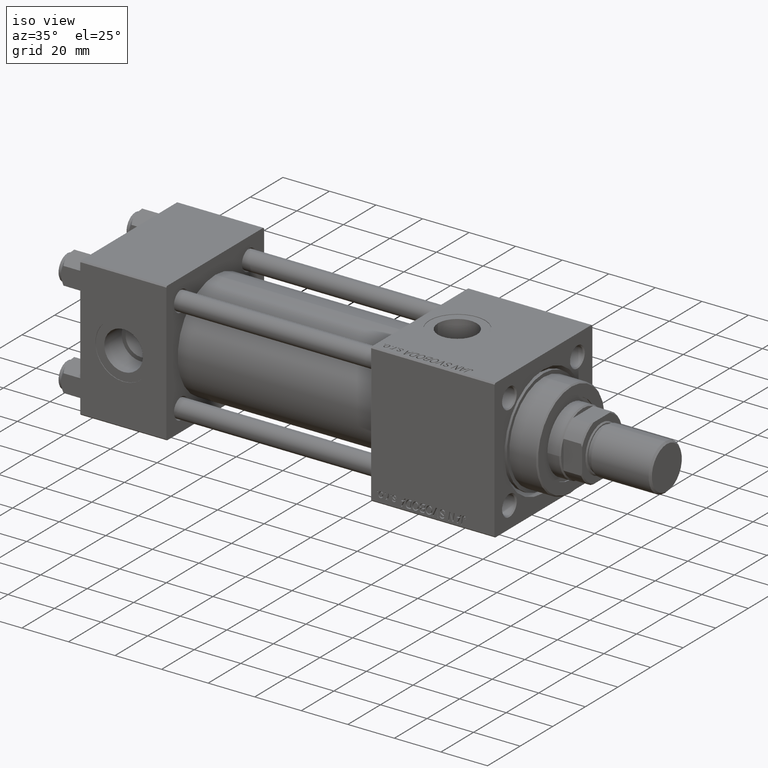
[diagram: clean part render]
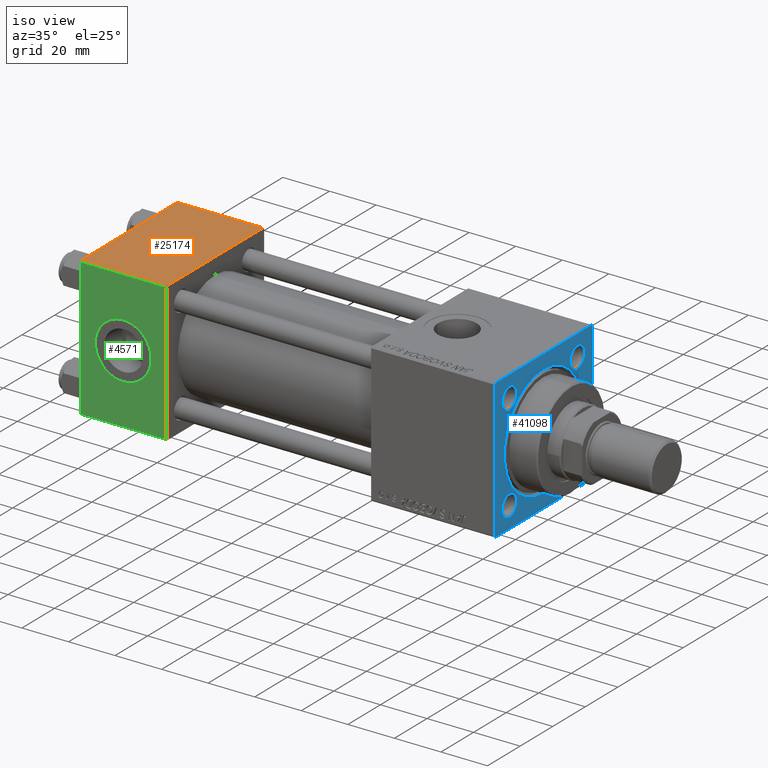
[diagram: same view with three faces highlighted in distinct colors, each labeled with its STEP entity id]
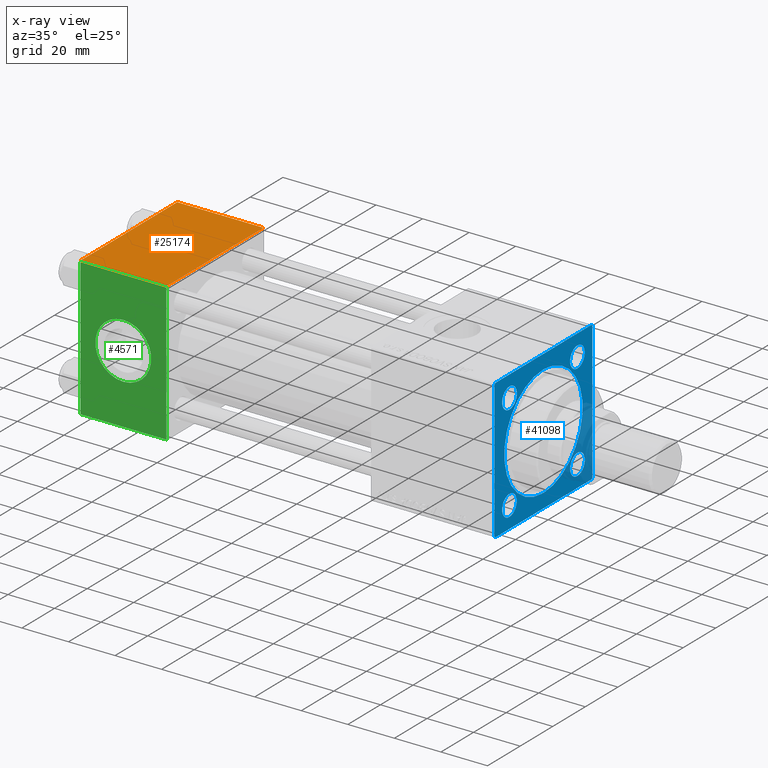
[diagram: x-ray of the same camera — body ghosted, the three highlighted faces saturated]
A machine part, iso view with three faces highlighted in distinct colors.
The next image is the same camera in x-ray (body ghosted, the three faces saturated) — at least one of them is partly hidden behind the body in this view.
Their STEP definitions:

[orange] entity #25174 — the highlighted planar face has unit normal (0, 0, -1).
#419 = CARTESIAN_POINT ( 'NONE',  ( 0.000000000000000000, 29.99999999999999289, 30.00000000000000000 ) ) ;
#2275 = ORIENTED_EDGE ( 'NONE', *, *, #38413, .T. ) ;
#3582 = CARTESIAN_POINT ( 'NONE',  ( 0.000000000000000000, -29.49999999999998579, 29.99999999999999289 ) ) ;
#4255 = VECTOR ( 'NONE', #31165, 1000.000000000000000 ) ;
#4434 = VERTEX_POINT ( 'NONE', #25150 ) ;
#4855 = CARTESIAN_POINT ( 'NONE',  ( 37.00000000000000000, -29.50000000000000000, 29.99999999999999289 ) ) ;
#5190 = DIRECTION ( 'NONE',  ( 0.000000000000000000, -1.000000000000000000, -1.156482317317871725E-16 ) ) ;
#6782 = VECTOR ( 'NONE', #5190, 1000.000000000000000 ) ;
#8196 = LINE ( 'NONE', #4855, #44171 ) ;
#8368 = ORIENTED_EDGE ( 'NONE', *, *, #26442, .F. ) ;
#9204 = DIRECTION ( 'NONE',  ( 1.000000000000000000, 0.000000000000000000, 0.000000000000000000 ) ) ;
#13129 = LINE ( 'NONE', #13383, #6782 ) ;
#13383 = CARTESIAN_POINT ( 'NONE',  ( 37.00000000000000000, 29.99999999999999289, 30.00000000000000000 ) ) ;
#15429 = DIRECTION ( 'NONE',  ( 0.000000000000000000, 1.156482317317871725E-16, -1.000000000000000000 ) ) ;
#15761 = VERTEX_POINT ( 'NONE', #47546 ) ;
#17382 = LINE ( 'NONE', #25059, #46408 ) ;
#17934 = VERTEX_POINT ( 'NONE', #45480 ) ;
#19281 = FACE_OUTER_BOUND ( 'NONE', #28199, .T. ) ;
#21654 = VERTEX_POINT ( 'NONE', #3582 ) ;
#23825 = EDGE_CURVE ( 'NONE', #4434, #21654, #35503, .T. ) ;
#25059 = CARTESIAN_POINT ( 'NONE',  ( 0.000000000000000000, 29.49999999999999289, 30.00000000000000000 ) ) ;
#25150 = CARTESIAN_POINT ( 'NONE',  ( 0.000000000000000000, 29.49999999999999289, 30.00000000000000000 ) ) ;
#25174 = ADVANCED_FACE ( 'NONE', ( #19281 ), #34883, .F. ) ;
#26442 = EDGE_CURVE ( 'NONE', #17934, #15761, #13129, .T. ) ;
#28199 = EDGE_LOOP ( 'NONE', ( #28802, #33187, #8368, #2275 ) ) ;
#28802 = ORIENTED_EDGE ( 'NONE', *, *, #23825, .T. ) ;
#31055 = DIRECTION ( 'NONE',  ( 0.000000000000000000, 1.000000000000000000, 1.156482317317871725E-16 ) ) ;
#31165 = DIRECTION ( 'NONE',  ( 0.000000000000000000, -1.000000000000000000, -1.156482317317871725E-16 ) ) ;
#33187 = ORIENTED_EDGE ( 'NONE', *, *, #48383, .T. ) ;
#34883 = PLANE ( 'NONE',  #49282 ) ;
#35503 = LINE ( 'NONE', #419, #4255 ) ;
#38413 = EDGE_CURVE ( 'NONE', #17934, #4434, #17382, .T. ) ;
#38990 = CARTESIAN_POINT ( 'NONE',  ( 37.00000000000000000, 29.99999999999999289, 30.00000000000000000 ) ) ;
#44171 = VECTOR ( 'NONE', #9204, 1000.000000000000000 ) ;
#45480 = CARTESIAN_POINT ( 'NONE',  ( 37.00000000000000000, 29.49999999999999289, 30.00000000000000000 ) ) ;
#46408 = VECTOR ( 'NONE', #48625, 1000.000000000000000 ) ;
#47546 = CARTESIAN_POINT ( 'NONE',  ( 37.00000000000000000, -29.49999999999998579, 29.99999999999999289 ) ) ;
#48383 = EDGE_CURVE ( 'NONE', #21654, #15761, #8196, .T. ) ;
#48625 = DIRECTION ( 'NONE',  ( -1.000000000000000000, 0.000000000000000000, 0.000000000000000000 ) ) ;
#49282 = AXIS2_PLACEMENT_3D ( 'NONE', #38990, #15429, #31055 ) ;

[blue] entity #41098 — the highlighted planar face has unit normal (-1, 0, 0).
#84 = VECTOR ( 'NONE', #40842, 1000.000000000000000 ) ;
#383 = DIRECTION ( 'NONE',  ( 0.000000000000000000, 0.000000000000000000, 1.000000000000000000 ) ) ;
#1110 = AXIS2_PLACEMENT_3D ( 'NONE', #14578, #30441, #46058 ) ;
#1218 = CIRCLE ( 'NONE', #24948, 4.500000000000031974 ) ;
#1448 = CARTESIAN_POINT ( 'NONE',  ( 178.0000000000000000, 0.000000000000000000, 0.000000000000000000 ) ) ;
#2280 = LINE ( 'NONE', #13813, #46663 ) ;
#2282 = CARTESIAN_POINT ( 'NONE',  ( 178.0000000000000000, 29.50000000000000000, 30.00000000000000000 ) ) ;
#2375 = CARTESIAN_POINT ( 'NONE',  ( 178.0000000000000000, 20.84999999999999787, -20.85000000000000142 ) ) ;
#2420 = DIRECTION ( 'NONE',  ( 0.000000000000000000, -0.7071067811865474617, 0.7071067811865474617 ) ) ;
#3049 = ORIENTED_EDGE ( 'NONE', *, *, #12692, .T. ) ;
#3252 = VERTEX_POINT ( 'NONE', #28126 ) ;
#3279 = LINE ( 'NONE', #41970, #3578 ) ;
#3300 = CARTESIAN_POINT ( 'NONE',  ( 178.0000000000000000, 20.84999999999999787, -16.34999999999996945 ) ) ;
#3305 = CARTESIAN_POINT ( 'NONE',  ( 178.0000000000000000, 30.00000000000000000, -29.49999999999999289 ) ) ;
#3337 = AXIS2_PLACEMENT_3D ( 'NONE', #18904, #26089, #46548 ) ;
#3578 = VECTOR ( 'NONE', #37620, 1000.000000000000000 ) ;
#3819 = EDGE_LOOP ( 'NONE', ( #21396, #24068, #21149, #39422, #46347, #7936, #39210, #43780 ) ) ;
#3895 = CARTESIAN_POINT ( 'NONE',  ( 178.0000000000000000, 30.00000000000000000, 30.00000000000000000 ) ) ;
#4002 = AXIS2_PLACEMENT_3D ( 'NONE', #44944, #37761, #6776 ) ;
#4302 = CARTESIAN_POINT ( 'NONE',  ( 178.0000000000000000, 20.84999999999999787, 25.35000000000003340 ) ) ;
#4943 = VERTEX_POINT ( 'NONE', #15210 ) ;
#5205 = DIRECTION ( 'NONE',  ( -1.000000000000000000, 0.000000000000000000, -0.000000000000000000 ) ) ;
#6566 = VECTOR ( 'NONE', #24750, 1000.000000000000114 ) ;
#6776 = DIRECTION ( 'NONE',  ( 0.000000000000000000, 0.000000000000000000, 1.000000000000000000 ) ) ;
#7576 = CARTESIAN_POINT ( 'NONE',  ( 178.0000000000000000, -20.84999999999999432, 20.85000000000000142 ) ) ;
#7663 = EDGE_CURVE ( 'NONE', #45684, #9048, #7752, .T. ) ;
#7752 = LINE ( 'NONE', #3895, #15099 ) ;
#7829 = DIRECTION ( 'NONE',  ( -1.000000000000000000, 0.000000000000000000, -0.000000000000000000 ) ) ;
#7902 = CARTESIAN_POINT ( 'NONE',  ( 178.0000000000000000, -20.84999999999999432, 16.34999999999996945 ) ) ;
#7936 = ORIENTED_EDGE ( 'NONE', *, *, #26273, .T. ) ;
#8173 = DIRECTION ( 'NONE',  ( -0.000000000000000000, 0.7071067811865672237, 0.7071067811865279218 ) ) ;
#8787 = EDGE_CURVE ( 'NONE', #14304, #21589, #30160, .T. ) ;
#9038 = DIRECTION ( 'NONE',  ( 0.000000000000000000, 0.000000000000000000, 1.000000000000000000 ) ) ;
#9048 = VERTEX_POINT ( 'NONE', #26126 ) ;
#9257 = ORIENTED_EDGE ( 'NONE', *, *, #30629, .T. ) ;
#9828 = CARTESIAN_POINT ( 'NONE',  ( 178.0000000000000000, -20.84999999999999432, 25.35000000000003340 ) ) ;
#10252 = CARTESIAN_POINT ( 'NONE',  ( 178.0000000000000000, 0.000000000000000000, -23.99999999999999645 ) ) ;
#10360 = CARTESIAN_POINT ( 'NONE',  ( 178.0000000000000000, 30.00000000000000000, 30.00000000000000000 ) ) ;
#11019 = CIRCLE ( 'NONE', #14290, 4.500000000000031974 ) ;
#11393 = CIRCLE ( 'NONE', #42470, 4.500000000000031974 ) ;
#12596 = EDGE_LOOP ( 'NONE', ( #17387, #18898 ) ) ;
#12692 = EDGE_CURVE ( 'NONE', #17951, #25317, #15457, .T. ) ;
#13477 = CARTESIAN_POINT ( 'NONE',  ( 178.0000000000000000, -30.00000000000000000, 29.49999999999999289 ) ) ;
#13698 = DIRECTION ( 'NONE',  ( 0.000000000000000000, 0.000000000000000000, 1.000000000000000000 ) ) ;
#13813 = CARTESIAN_POINT ( 'NONE',  ( 178.0000000000000000, -30.00000000000000000, 29.99999999999999289 ) ) ;
#13873 = EDGE_CURVE ( 'NONE', #21589, #14304, #11393, .T. ) ;
#14148 = VECTOR ( 'NONE', #2420, 1000.000000000000114 ) ;
#14290 = AXIS2_PLACEMENT_3D ( 'NONE', #42302, #14908, #18758 ) ;
#14304 = VERTEX_POINT ( 'NONE', #3300 ) ;
#14578 = CARTESIAN_POINT ( 'NONE',  ( 178.0000000000000000, 20.84999999999999787, 20.85000000000000142 ) ) ;
#14908 = DIRECTION ( 'NONE',  ( -1.000000000000000000, 0.000000000000000000, -0.000000000000000000 ) ) ;
#15023 = EDGE_LOOP ( 'NONE', ( #9257, #25593 ) ) ;
#15099 = VECTOR ( 'NONE', #15689, 1000.000000000000000 ) ;
#15210 = CARTESIAN_POINT ( 'NONE',  ( 178.0000000000000000, 30.00000000000000000, -29.49999999999997868 ) ) ;
#15457 = CIRCLE ( 'NONE', #4002, 23.99999999999999645 ) ;
#15689 = DIRECTION ( 'NONE',  ( 0.000000000000000000, -1.000000000000000000, -1.156482317317871478E-16 ) ) ;
#16066 = CARTESIAN_POINT ( 'NONE',  ( 178.0000000000000000, -30.00000000000000000, 29.49999999999999289 ) ) ;
#16329 = FACE_BOUND ( 'NONE', #24389, .T. ) ;
#16627 = EDGE_CURVE ( 'NONE', #9048, #19910, #17321, .T. ) ;
#16835 = FACE_BOUND ( 'NONE', #26157, .T. ) ;
#17321 = LINE ( 'NONE', #13477, #6566 ) ;
#17387 = ORIENTED_EDGE ( 'NONE', *, *, #13873, .T. ) ;
#17607 = EDGE_CURVE ( 'NONE', #25317, #17951, #25432, .T. ) ;
#17951 = VERTEX_POINT ( 'NONE', #39561 ) ;
#17999 = DIRECTION ( 'NONE',  ( -1.000000000000000000, 0.000000000000000000, -0.000000000000000000 ) ) ;
#18100 = CARTESIAN_POINT ( 'NONE',  ( 178.0000000000000000, 29.49999999999997158, -29.99999999999999289 ) ) ;
#18494 = DIRECTION ( 'NONE',  ( -1.000000000000000000, 0.000000000000000000, -0.000000000000000000 ) ) ;
#18758 = DIRECTION ( 'NONE',  ( 0.000000000000000000, 0.000000000000000000, 1.000000000000000000 ) ) ;
#18898 = ORIENTED_EDGE ( 'NONE', *, *, #8787, .T. ) ;
#18904 = CARTESIAN_POINT ( 'NONE',  ( 178.0000000000000000, 0.000000000000000000, 0.000000000000000000 ) ) ;
#19444 = LINE ( 'NONE', #3305, #44650 ) ;
#19910 = VERTEX_POINT ( 'NONE', #16066 ) ;
#20672 = FACE_BOUND ( 'NONE', #38150, .T. ) ;
#20976 = VERTEX_POINT ( 'NONE', #37790 ) ;
#21149 = ORIENTED_EDGE ( 'NONE', *, *, #28595, .F. ) ;
#21396 = ORIENTED_EDGE ( 'NONE', *, *, #48512, .T. ) ;
#21589 = VERTEX_POINT ( 'NONE', #48708 ) ;
#21630 = LINE ( 'NONE', #25980, #14148 ) ;
#21916 = AXIS2_PLACEMENT_3D ( 'NONE', #7576, #7829, #42654 ) ;
#22170 = AXIS2_PLACEMENT_3D ( 'NONE', #45440, #37247, #13698 ) ;
#22462 = ORIENTED_EDGE ( 'NONE', *, *, #28657, .T. ) ;
#23805 = CIRCLE ( 'NONE', #22170, 4.500000000000031974 ) ;
#24068 = ORIENTED_EDGE ( 'NONE', *, *, #26241, .T. ) ;
#24254 = FACE_BOUND ( 'NONE', #12596, .T. ) ;
#24389 = EDGE_LOOP ( 'NONE', ( #45787, #22462 ) ) ;
#24750 = DIRECTION ( 'NONE',  ( -0.000000000000000000, -0.7071067811865474617, -0.7071067811865474617 ) ) ;
#24760 = PLANE ( 'NONE',  #36607 ) ;
#24765 = VECTOR ( 'NONE', #42098, 1000.000000000000114 ) ;
#24948 = AXIS2_PLACEMENT_3D ( 'NONE', #37688, #18494, #49736 ) ;
#25191 = ORIENTED_EDGE ( 'NONE', *, *, #17607, .T. ) ;
#25317 = VERTEX_POINT ( 'NONE', #10252 ) ;
#25432 = CIRCLE ( 'NONE', #3337, 23.99999999999999645 ) ;
#25569 = ORIENTED_EDGE ( 'NONE', *, *, #31369, .T. ) ;
#25593 = ORIENTED_EDGE ( 'NONE', *, *, #42213, .T. ) ;
#25980 = CARTESIAN_POINT ( 'NONE',  ( 178.0000000000000000, 29.50000000000000000, 30.00000000000000000 ) ) ;
#26089 = DIRECTION ( 'NONE',  ( -1.000000000000000000, 0.000000000000000000, -0.000000000000000000 ) ) ;
#26126 = CARTESIAN_POINT ( 'NONE',  ( 178.0000000000000000, -29.50000000000000000, 29.99999999999999289 ) ) ;
#26157 = EDGE_LOOP ( 'NONE', ( #25569, #43330 ) ) ;
#26241 = EDGE_CURVE ( 'NONE', #3252, #39759, #30323, .T. ) ;
#26273 = EDGE_CURVE ( 'NONE', #49814, #45684, #21630, .T. ) ;
#28098 = FACE_OUTER_BOUND ( 'NONE', #3819, .T. ) ;
#28126 = CARTESIAN_POINT ( 'NONE',  ( 178.0000000000000000, -30.00000000000000000, -29.49999999999998579 ) ) ;
#28285 = DIRECTION ( 'NONE',  ( -1.000000000000000000, 0.000000000000000000, -0.000000000000000000 ) ) ;
#28414 = CIRCLE ( 'NONE', #39054, 4.500000000000031974 ) ;
#28595 = EDGE_CURVE ( 'NONE', #45012, #39759, #3279, .T. ) ;
#28657 = EDGE_CURVE ( 'NONE', #35643, #49520, #50218, .T. ) ;
#29940 = CARTESIAN_POINT ( 'NONE',  ( 178.0000000000000000, -20.85000000000000142, -16.34999999999996945 ) ) ;
#30160 = CIRCLE ( 'NONE', #35043, 4.500000000000031974 ) ;
#30323 = LINE ( 'NONE', #46189, #24765 ) ;
#30441 = DIRECTION ( 'NONE',  ( -1.000000000000000000, 0.000000000000000000, -0.000000000000000000 ) ) ;
#30629 = EDGE_CURVE ( 'NONE', #47848, #42373, #11019, .T. ) ;
#31369 = EDGE_CURVE ( 'NONE', #20976, #41738, #1218, .T. ) ;
#33541 = EDGE_CURVE ( 'NONE', #45012, #4943, #19444, .T. ) ;
#34189 = CIRCLE ( 'NONE', #21916, 4.500000000000031974 ) ;
#35043 = AXIS2_PLACEMENT_3D ( 'NONE', #48482, #5205, #9038 ) ;
#35466 = CARTESIAN_POINT ( 'NONE',  ( 178.0000000000000000, 20.84999999999999787, 20.85000000000000142 ) ) ;
#35480 = CARTESIAN_POINT ( 'NONE',  ( 178.0000000000000000, 30.00000000000000000, 29.50000000000000000 ) ) ;
#35643 = VERTEX_POINT ( 'NONE', #4302 ) ;
#36027 = FACE_BOUND ( 'NONE', #15023, .T. ) ;
#36607 = AXIS2_PLACEMENT_3D ( 'NONE', #1448, #39626, #43472 ) ;
#37247 = DIRECTION ( 'NONE',  ( -1.000000000000000000, 0.000000000000000000, -0.000000000000000000 ) ) ;
#37611 = DIRECTION ( 'NONE',  ( 0.000000000000000000, 0.000000000000000000, -1.000000000000000000 ) ) ;
#37620 = DIRECTION ( 'NONE',  ( 0.000000000000000000, -1.000000000000000000, -1.156482317317871478E-16 ) ) ;
#37688 = CARTESIAN_POINT ( 'NONE',  ( 178.0000000000000000, -20.85000000000000142, -20.85000000000000142 ) ) ;
#37761 = DIRECTION ( 'NONE',  ( -1.000000000000000000, 0.000000000000000000, -0.000000000000000000 ) ) ;
#37790 = CARTESIAN_POINT ( 'NONE',  ( 178.0000000000000000, -20.85000000000000142, -25.35000000000003340 ) ) ;
#38150 = EDGE_LOOP ( 'NONE', ( #25191, #3049 ) ) ;
#39054 = AXIS2_PLACEMENT_3D ( 'NONE', #35466, #28285, #383 ) ;
#39210 = ORIENTED_EDGE ( 'NONE', *, *, #7663, .T. ) ;
#39422 = ORIENTED_EDGE ( 'NONE', *, *, #33541, .T. ) ;
#39561 = CARTESIAN_POINT ( 'NONE',  ( 178.0000000000000000, 2.939152317953647500E-15, 23.99999999999999645 ) ) ;
#39626 = DIRECTION ( 'NONE',  ( -1.000000000000000000, 0.000000000000000000, -0.000000000000000000 ) ) ;
#39759 = VERTEX_POINT ( 'NONE', #48697 ) ;
#40842 = DIRECTION ( 'NONE',  ( 0.000000000000000000, 0.000000000000000000, -1.000000000000000000 ) ) ;
#41098 = ADVANCED_FACE ( 'NONE', ( #16329, #36027, #16835, #24254, #20672, #28098 ), #24760, .F. ) ;
#41342 = EDGE_CURVE ( 'NONE', #49520, #35643, #28414, .T. ) ;
#41610 = LINE ( 'NONE', #10360, #84 ) ;
#41738 = VERTEX_POINT ( 'NONE', #29940 ) ;
#41970 = CARTESIAN_POINT ( 'NONE',  ( 178.0000000000000000, 30.00000000000000000, -29.99999999999999289 ) ) ;
#42098 = DIRECTION ( 'NONE',  ( 0.000000000000000000, 0.7071067811865474617, -0.7071067811865474617 ) ) ;
#42213 = EDGE_CURVE ( 'NONE', #42373, #47848, #34189, .T. ) ;
#42302 = CARTESIAN_POINT ( 'NONE',  ( 178.0000000000000000, -20.84999999999999432, 20.85000000000000142 ) ) ;
#42373 = VERTEX_POINT ( 'NONE', #9828 ) ;
#42470 = AXIS2_PLACEMENT_3D ( 'NONE', #2375, #17999, #49748 ) ;
#42654 = DIRECTION ( 'NONE',  ( 0.000000000000000000, 0.000000000000000000, 1.000000000000000000 ) ) ;
#42787 = CARTESIAN_POINT ( 'NONE',  ( 178.0000000000000000, 20.84999999999999787, 16.34999999999996945 ) ) ;
#43330 = ORIENTED_EDGE ( 'NONE', *, *, #49954, .T. ) ;
#43472 = DIRECTION ( 'NONE',  ( -0.000000000000000000, 0.000000000000000000, 1.000000000000000000 ) ) ;
#43780 = ORIENTED_EDGE ( 'NONE', *, *, #16627, .T. ) ;
#44650 = VECTOR ( 'NONE', #8173, 1000.000000000000000 ) ;
#44944 = CARTESIAN_POINT ( 'NONE',  ( 178.0000000000000000, 0.000000000000000000, 0.000000000000000000 ) ) ;
#45012 = VERTEX_POINT ( 'NONE', #18100 ) ;
#45440 = CARTESIAN_POINT ( 'NONE',  ( 178.0000000000000000, -20.85000000000000142, -20.85000000000000142 ) ) ;
#45684 = VERTEX_POINT ( 'NONE', #2282 ) ;
#45787 = ORIENTED_EDGE ( 'NONE', *, *, #41342, .T. ) ;
#46058 = DIRECTION ( 'NONE',  ( 0.000000000000000000, 0.000000000000000000, 1.000000000000000000 ) ) ;
#46189 = CARTESIAN_POINT ( 'NONE',  ( 178.0000000000000000, -29.50000000000000000, -30.00000000000000000 ) ) ;
#46347 = ORIENTED_EDGE ( 'NONE', *, *, #49970, .F. ) ;
#46548 = DIRECTION ( 'NONE',  ( 0.000000000000000000, 0.000000000000000000, 1.000000000000000000 ) ) ;
#46663 = VECTOR ( 'NONE', #37611, 1000.000000000000000 ) ;
#47848 = VERTEX_POINT ( 'NONE', #7902 ) ;
#48482 = CARTESIAN_POINT ( 'NONE',  ( 178.0000000000000000, 20.84999999999999787, -20.85000000000000142 ) ) ;
#48512 = EDGE_CURVE ( 'NONE', #19910, #3252, #2280, .T. ) ;
#48697 = CARTESIAN_POINT ( 'NONE',  ( 178.0000000000000000, -29.50000000000000000, -30.00000000000000000 ) ) ;
#48708 = CARTESIAN_POINT ( 'NONE',  ( 178.0000000000000000, 20.84999999999999787, -25.35000000000003340 ) ) ;
#49520 = VERTEX_POINT ( 'NONE', #42787 ) ;
#49736 = DIRECTION ( 'NONE',  ( 0.000000000000000000, 0.000000000000000000, 1.000000000000000000 ) ) ;
#49748 = DIRECTION ( 'NONE',  ( 0.000000000000000000, 0.000000000000000000, 1.000000000000000000 ) ) ;
#49814 = VERTEX_POINT ( 'NONE', #35480 ) ;
#49954 = EDGE_CURVE ( 'NONE', #41738, #20976, #23805, .T. ) ;
#49970 = EDGE_CURVE ( 'NONE', #49814, #4943, #41610, .T. ) ;
#50218 = CIRCLE ( 'NONE', #1110, 4.500000000000031974 ) ;

[green] entity #4571 — the highlighted planar face has unit normal (0, 1, 0).
#346 = CIRCLE ( 'NONE', #26524, 12.00000000000000178 ) ;
#973 = CARTESIAN_POINT ( 'NONE',  ( 0.000000000000000000, -30.00000000000000000, -29.50000000000001776 ) ) ;
#2852 = EDGE_CURVE ( 'NONE', #34120, #48543, #4747, .T. ) ;
#3848 = CARTESIAN_POINT ( 'NONE',  ( 37.00000000000000000, -30.00000000000000000, 29.99999999999999289 ) ) ;
#4107 = DIRECTION ( 'NONE',  ( -0.000000000000000000, 1.000000000000000000, 0.000000000000000000 ) ) ;
#4437 = DIRECTION ( 'NONE',  ( 0.000000000000000000, 0.000000000000000000, -1.000000000000000000 ) ) ;
#4571 = ADVANCED_FACE ( 'NONE', ( #38942, #43041 ), #39201, .F. ) ;
#4747 = LINE ( 'NONE', #13450, #18345 ) ;
#5049 = CARTESIAN_POINT ( 'NONE',  ( 18.50000000000000000, -30.00000000000000000, 12.00000000000000178 ) ) ;
#5261 = DIRECTION ( 'NONE',  ( -1.000000000000000000, 0.000000000000000000, 0.000000000000000000 ) ) ;
#5423 = VECTOR ( 'NONE', #42209, 1000.000000000000000 ) ;
#5627 = DIRECTION ( 'NONE',  ( 0.000000000000000000, -0.000000000000000000, 1.000000000000000000 ) ) ;
#5808 = CARTESIAN_POINT ( 'NONE',  ( 18.50000000000000000, -30.00000000000000000, -12.00000000000000178 ) ) ;
#7316 = VECTOR ( 'NONE', #24526, 1000.000000000000000 ) ;
#10897 = DIRECTION ( 'NONE',  ( 0.000000000000000000, 0.000000000000000000, -1.000000000000000000 ) ) ;
#12954 = ORIENTED_EDGE ( 'NONE', *, *, #29398, .F. ) ;
#13450 = CARTESIAN_POINT ( 'NONE',  ( 37.00000000000000000, -30.00000000000000000, 29.49999999999999289 ) ) ;
#14572 = AXIS2_PLACEMENT_3D ( 'NONE', #14738, #22175, #10897 ) ;
#14738 = CARTESIAN_POINT ( 'NONE',  ( 18.50000000000000000, -30.00000000000000000, 0.000000000000000000 ) ) ;
#16334 = EDGE_CURVE ( 'NONE', #48543, #22851, #39742, .T. ) ;
#18169 = VERTEX_POINT ( 'NONE', #45861 ) ;
#18345 = VECTOR ( 'NONE', #5261, 1000.000000000000000 ) ;
#19380 = ORIENTED_EDGE ( 'NONE', *, *, #2852, .T. ) ;
#20273 = CIRCLE ( 'NONE', #14572, 12.00000000000000178 ) ;
#21753 = LINE ( 'NONE', #33533, #5423 ) ;
#22175 = DIRECTION ( 'NONE',  ( 0.000000000000000000, -1.000000000000000000, -8.673617379884036705E-17 ) ) ;
#22851 = VERTEX_POINT ( 'NONE', #973 ) ;
#23906 = DIRECTION ( 'NONE',  ( 0.000000000000000000, -1.000000000000000000, -8.673617379884036705E-17 ) ) ;
#23988 = ORIENTED_EDGE ( 'NONE', *, *, #42844, .F. ) ;
#24526 = DIRECTION ( 'NONE',  ( 0.000000000000000000, 0.000000000000000000, -1.000000000000000000 ) ) ;
#26524 = AXIS2_PLACEMENT_3D ( 'NONE', #27751, #23906, #4437 ) ;
#27751 = CARTESIAN_POINT ( 'NONE',  ( 18.50000000000000000, -30.00000000000000000, 0.000000000000000000 ) ) ;
#29041 = CARTESIAN_POINT ( 'NONE',  ( 37.00000000000000000, -30.00000000000000000, 29.49999999999999289 ) ) ;
#29398 = EDGE_CURVE ( 'NONE', #35878, #41990, #346, .T. ) ;
#32460 = LINE ( 'NONE', #44485, #7316 ) ;
#33530 = CARTESIAN_POINT ( 'NONE',  ( 0.000000000000000000, -30.00000000000000000, 29.49999999999999289 ) ) ;
#33533 = CARTESIAN_POINT ( 'NONE',  ( 37.00000000000000000, -30.00000000000000000, -29.50000000000001776 ) ) ;
#34120 = VERTEX_POINT ( 'NONE', #29041 ) ;
#34858 = EDGE_CURVE ( 'NONE', #22851, #18169, #21753, .T. ) ;
#35878 = VERTEX_POINT ( 'NONE', #5808 ) ;
#36587 = DIRECTION ( 'NONE',  ( 0.000000000000000000, 0.000000000000000000, -1.000000000000000000 ) ) ;
#38090 = ORIENTED_EDGE ( 'NONE', *, *, #16334, .T. ) ;
#38942 = FACE_BOUND ( 'NONE', #49699, .T. ) ;
#39201 = PLANE ( 'NONE',  #50304 ) ;
#39742 = LINE ( 'NONE', #44527, #44990 ) ;
#41990 = VERTEX_POINT ( 'NONE', #5049 ) ;
#42209 = DIRECTION ( 'NONE',  ( 1.000000000000000000, 0.000000000000000000, 0.000000000000000000 ) ) ;
#42844 = EDGE_CURVE ( 'NONE', #41990, #35878, #20273, .T. ) ;
#43014 = EDGE_LOOP ( 'NONE', ( #38090, #46928, #44570, #19380 ) ) ;
#43041 = FACE_OUTER_BOUND ( 'NONE', #43014, .T. ) ;
#44485 = CARTESIAN_POINT ( 'NONE',  ( 37.00000000000000000, -30.00000000000000000, 29.99999999999999289 ) ) ;
#44527 = CARTESIAN_POINT ( 'NONE',  ( 0.000000000000000000, -30.00000000000000000, 29.99999999999999289 ) ) ;
#44570 = ORIENTED_EDGE ( 'NONE', *, *, #46913, .F. ) ;
#44990 = VECTOR ( 'NONE', #36587, 1000.000000000000000 ) ;
#45861 = CARTESIAN_POINT ( 'NONE',  ( 37.00000000000000000, -30.00000000000000000, -29.50000000000001776 ) ) ;
#46913 = EDGE_CURVE ( 'NONE', #34120, #18169, #32460, .T. ) ;
#46928 = ORIENTED_EDGE ( 'NONE', *, *, #34858, .T. ) ;
#48543 = VERTEX_POINT ( 'NONE', #33530 ) ;
#49699 = EDGE_LOOP ( 'NONE', ( #12954, #23988 ) ) ;
#50304 = AXIS2_PLACEMENT_3D ( 'NONE', #3848, #4107, #5627 ) ;